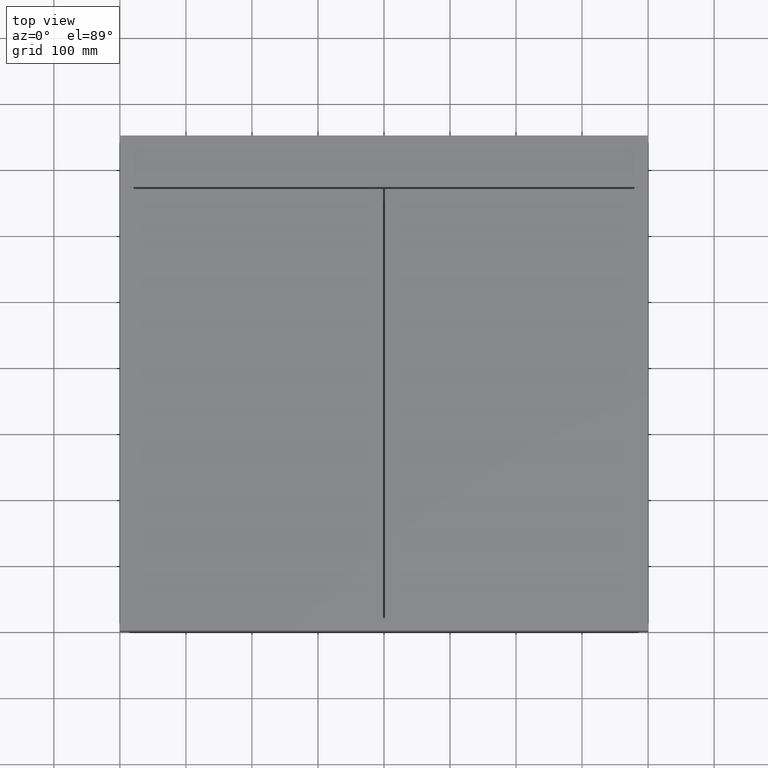
[diagram: clean part render]
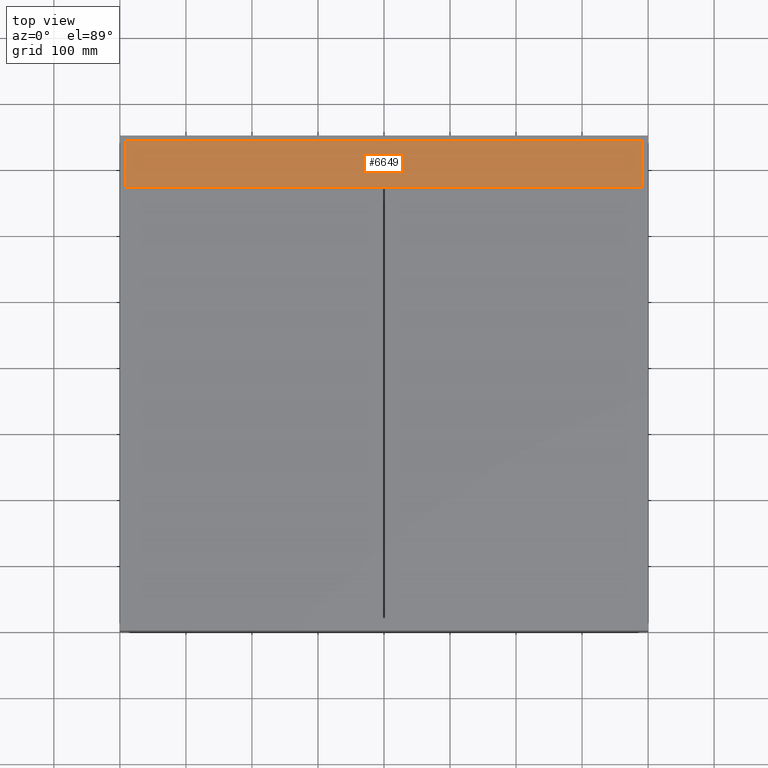
[diagram: same view with one face highlighted and labeled with its STEP entity id]
A machine part, top view. The second image highlights one B-rep face of the part: STEP entity #6649.
In plain terms, the highlighted planar face has unit normal (-0, 0, -1).
Its self-contained STEP definition (entity closure, byte-faithful):
#266 = CARTESIAN_POINT ( 'NONE',  ( 871.6493188923168418, 742.0000000000000000, -1.000000000000018208 ) ) ;
#315 = LINE ( 'NONE', #3928, #7005 ) ;
#1129 = ORIENTED_EDGE ( 'NONE', *, *, #6063, .F. ) ;
#1702 = DIRECTION ( 'NONE',  ( 0.0000000000000000000, -1.000000000000000000, -1.239086427002825628E-16 ) ) ;
#1953 = ORIENTED_EDGE ( 'NONE', *, *, #5966, .T. ) ;
#2749 = CARTESIAN_POINT ( 'NONE',  ( 792.0000000000000000, 742.0000000000000000, -1.000000000000011324 ) ) ;
#3008 = VERTEX_POINT ( 'NONE', #10837 ) ;
#3072 = LINE ( 'NONE', #6667, #11250 ) ;
#3200 = CARTESIAN_POINT ( 'NONE',  ( 871.6493188923168418, 671.9999000000001388, -1.000000000000028644 ) ) ;
#3527 = EDGE_LOOP ( 'NONE', ( #7090, #8138, #1953, #1129 ) ) ;
#3880 = DIRECTION ( 'NONE',  ( -1.153591111524576471E-16, 1.239086427002825628E-16, -1.000000000000000000 ) ) ;
#3928 = CARTESIAN_POINT ( 'NONE',  ( 8.000000000000007105, 742.0000000000000000, -0.9999999999999210631 ) ) ;
#4385 = VECTOR ( 'NONE', #6792, 1000.000000000000000 ) ;
#4761 = FACE_OUTER_BOUND ( 'NONE', #3527, .T. ) ;
#5602 = VERTEX_POINT ( 'NONE', #9422 ) ;
#5966 = EDGE_CURVE ( 'NONE', #5602, #10924, #315, .T. ) ;
#6063 = EDGE_CURVE ( 'NONE', #3008, #10924, #11301, .T. ) ;
#6189 = LINE ( 'NONE', #9807, #9937 ) ;
#6548 = VERTEX_POINT ( 'NONE', #2749 ) ;
#6649 = ADVANCED_FACE ( 'NONE', ( #4761 ), #8357, .F. ) ;
#6667 = CARTESIAN_POINT ( 'NONE',  ( 871.6493188923168418, 742.0000000000000000, -1.000000000000018208 ) ) ;
#6792 = DIRECTION ( 'NONE',  ( -1.000000000000000000, 5.777789833161706704E-34, 1.153591111524576471E-16 ) ) ;
#7005 = VECTOR ( 'NONE', #7505, 1000.000000000000000 ) ;
#7090 = ORIENTED_EDGE ( 'NONE', *, *, #10798, .F. ) ;
#7456 = DIRECTION ( 'NONE',  ( 0.0000000000000000000, 1.000000000000000000, 1.239086427002825628E-16 ) ) ;
#7505 = DIRECTION ( 'NONE',  ( 0.0000000000000000000, -1.000000000000000000, -1.239086427002825381E-16 ) ) ;
#7779 = AXIS2_PLACEMENT_3D ( 'NONE', #266, #3880, #7456 ) ;
#8138 = ORIENTED_EDGE ( 'NONE', *, *, #11608, .T. ) ;
#8357 = PLANE ( 'NONE',  #7779 ) ;
#9422 = CARTESIAN_POINT ( 'NONE',  ( 8.000000000000007105, 742.0000000000000000, -0.9999999999999210631 ) ) ;
#9807 = CARTESIAN_POINT ( 'NONE',  ( 792.0000000000000000, 742.0000000000000000, -1.000000000000011324 ) ) ;
#9937 = VECTOR ( 'NONE', #1702, 1000.000000000000000 ) ;
#10294 = DIRECTION ( 'NONE',  ( -1.000000000000000000, 5.777789833161706704E-34, 1.153591111524576471E-16 ) ) ;
#10798 = EDGE_CURVE ( 'NONE', #6548, #3008, #6189, .T. ) ;
#10837 = CARTESIAN_POINT ( 'NONE',  ( 792.0000000000000000, 671.9999000000001388, -1.000000000000018208 ) ) ;
#10924 = VERTEX_POINT ( 'NONE', #10990 ) ;
#10990 = CARTESIAN_POINT ( 'NONE',  ( 8.000000000000007105, 671.9999000000001388, -0.9999999999999280575 ) ) ;
#11250 = VECTOR ( 'NONE', #10294, 1000.000000000000000 ) ;
#11301 = LINE ( 'NONE', #3200, #4385 ) ;
#11608 = EDGE_CURVE ( 'NONE', #6548, #5602, #3072, .T. ) ;